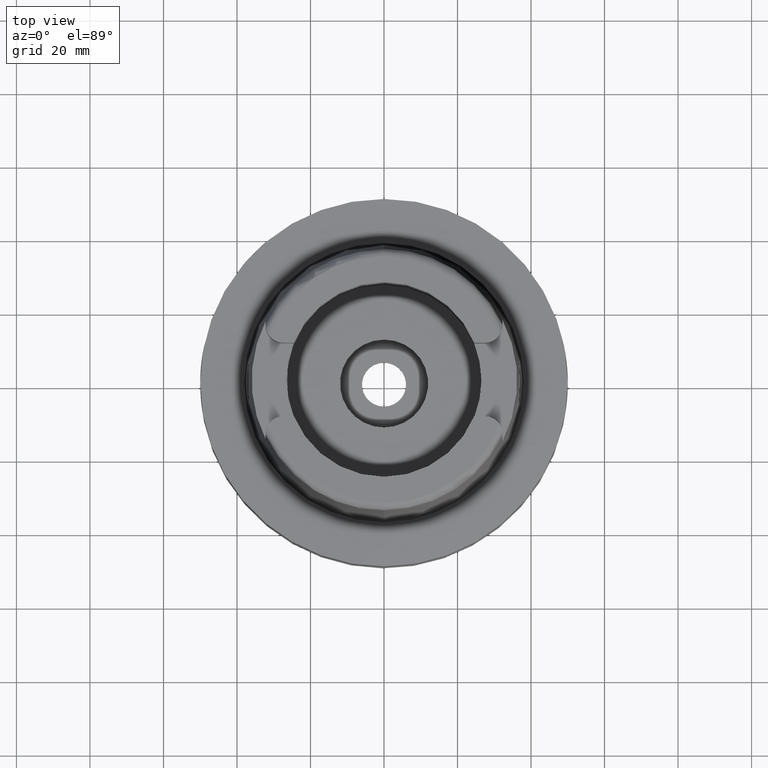
[diagram: clean part render]
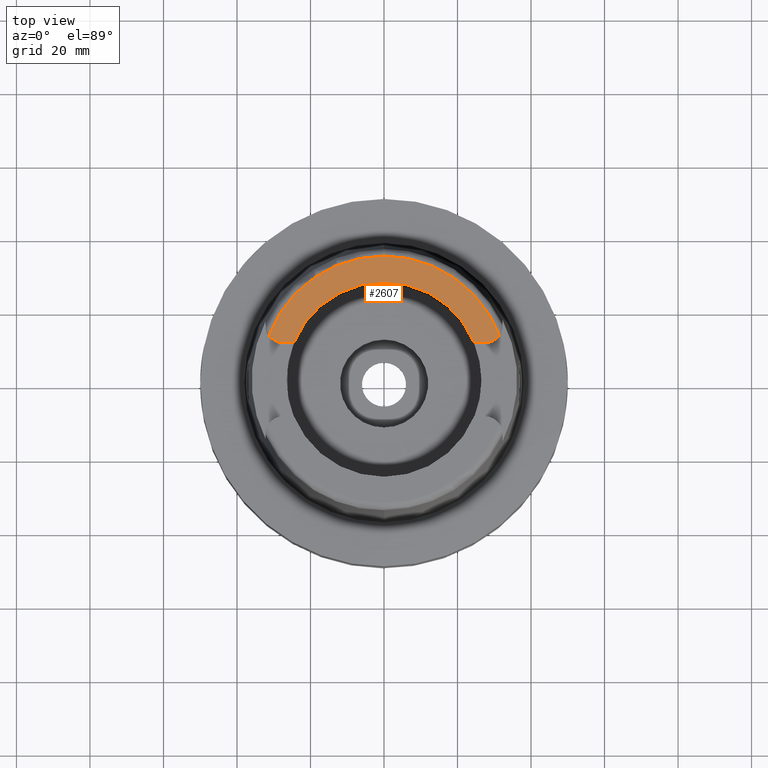
[diagram: same view with one face highlighted and labeled with its STEP entity id]
A machine part, top view. The second image highlights one B-rep face of the part: STEP entity #2607.
In plain terms, the highlighted planar face has unit normal (0, 0, 1).
Its self-contained STEP definition (entity closure, byte-faithful):
#67 = FACE_OUTER_BOUND ( 'NONE', #4499, .T. ) ;
#395 = VERTEX_POINT ( 'NONE', #3843 ) ;
#671 = DIRECTION ( 'NONE',  ( 0.0000000000000000000, -1.000000000000000000, 0.0000000000000000000 ) ) ;
#695 = CARTESIAN_POINT ( 'NONE',  ( 27.36999999999999744, 10.00999999999999979, 50.00000000000000000 ) ) ;
#720 = AXIS2_PLACEMENT_3D ( 'NONE', #2343, #2863, #2935 ) ;
#938 = DIRECTION ( 'NONE',  ( 1.000000000000000000, -1.423194637337000101E-13, 0.0000000000000000000 ) ) ;
#1067 = CARTESIAN_POINT ( 'NONE',  ( 0.0000000000000000000, 0.0000000000000000000, 50.00000000000000000 ) ) ;
#1154 = DIRECTION ( 'NONE',  ( 0.0000000000000000000, 1.000000000000000000, 0.0000000000000000000 ) ) ;
#1200 = CIRCLE ( 'NONE', #4673, 4.879999999999999005 ) ;
#1302 = CARTESIAN_POINT ( 'NONE',  ( 27.36999999999999744, 14.89000000000000057, 50.00000000000000000 ) ) ;
#1338 = CIRCLE ( 'NONE', #2332, 4.880000000000001670 ) ;
#1373 = LINE ( 'NONE', #3265, #2190 ) ;
#1421 = CARTESIAN_POINT ( 'NONE',  ( 31.35385269249000473, 12.07161079256999869, 50.00000000000000000 ) ) ;
#1606 = LINE ( 'NONE', #3497, #1702 ) ;
#1678 = VERTEX_POINT ( 'NONE', #2262 ) ;
#1702 = VECTOR ( 'NONE', #2137, 1000.000000000000000 ) ;
#1727 = CARTESIAN_POINT ( 'NONE',  ( -27.36999999999999744, 14.89000000000000057, 50.00000000000000000 ) ) ;
#1960 = DIRECTION ( 'NONE',  ( 0.0000000000000000000, 0.0000000000000000000, 1.000000000000000000 ) ) ;
#2137 = DIRECTION ( 'NONE',  ( 1.000000000000000000, 1.429464217237000036E-13, 0.0000000000000000000 ) ) ;
#2169 = ORIENTED_EDGE ( 'NONE', *, *, #5529, .F. ) ;
#2184 = AXIS2_PLACEMENT_3D ( 'NONE', #5342, #3449, #2488 ) ;
#2190 = VECTOR ( 'NONE', #938, 1000.000000000000000 ) ;
#2262 = CARTESIAN_POINT ( 'NONE',  ( 24.53670515777999839, 10.00999999999999979, 50.00000000000000000 ) ) ;
#2332 = AXIS2_PLACEMENT_3D ( 'NONE', #1302, #4123, #2698 ) ;
#2343 = CARTESIAN_POINT ( 'NONE',  ( 0.0000000000000000000, 0.0000000000000000000, 50.00000000000000000 ) ) ;
#2488 = DIRECTION ( 'NONE',  ( 0.9259134021805098813, 0.3777358490566039562, 0.0000000000000000000 ) ) ;
#2607 = ADVANCED_FACE ( 'NONE', ( #67 ), #4344, .T. ) ;
#2608 = CARTESIAN_POINT ( 'NONE',  ( 0.0000000000000000000, 0.0000000000000000000, 50.00000000000000000 ) ) ;
#2675 = EDGE_CURVE ( 'NONE', #1678, #395, #5056, .T. ) ;
#2698 = DIRECTION ( 'NONE',  ( 0.8163632566568778115, -0.5775387720149849358, 0.0000000000000000000 ) ) ;
#2863 = DIRECTION ( 'NONE',  ( 0.0000000000000000000, 0.0000000000000000000, -1.000000000000000000 ) ) ;
#2897 = CARTESIAN_POINT ( 'NONE',  ( -27.36999999999999744, 10.00999999999999979, 50.00000000000000000 ) ) ;
#2935 = DIRECTION ( 'NONE',  ( -0.9332215253017949186, 0.3593015233941980191, 0.0000000000000000000 ) ) ;
#3005 = VERTEX_POINT ( 'NONE', #1421 ) ;
#3090 = CIRCLE ( 'NONE', #4974, 26.50000000000000000 ) ;
#3187 = CARTESIAN_POINT ( 'NONE',  ( -31.35385269249000473, 12.07161079256999869, 50.00000000000000000 ) ) ;
#3265 = CARTESIAN_POINT ( 'NONE',  ( 24.53670515777999839, 10.00999999999999979, 50.00000000000000000 ) ) ;
#3283 = ORIENTED_EDGE ( 'NONE', *, *, #4233, .F. ) ;
#3449 = DIRECTION ( 'NONE',  ( 0.0000000000000000000, 0.0000000000000000000, 1.000000000000000000 ) ) ;
#3497 = CARTESIAN_POINT ( 'NONE',  ( -27.36999999999999744, 10.00999999999999979, 50.00000000000000000 ) ) ;
#3509 = DIRECTION ( 'NONE',  ( 0.0000000000000000000, 0.0000000000000000000, 1.000000000000000000 ) ) ;
#3512 = EDGE_CURVE ( 'NONE', #1678, #5752, #1373, .T. ) ;
#3843 = CARTESIAN_POINT ( 'NONE',  ( 0.0000000000000000000, 26.50000000000000000, 50.00000000000000000 ) ) ;
#3954 = AXIS2_PLACEMENT_3D ( 'NONE', #1067, #1960, #4848 ) ;
#4008 = EDGE_CURVE ( 'NONE', #5550, #4447, #1606, .T. ) ;
#4044 = ORIENTED_EDGE ( 'NONE', *, *, #4008, .T. ) ;
#4123 = DIRECTION ( 'NONE',  ( 0.0000000000000000000, 0.0000000000000000000, -1.000000000000000000 ) ) ;
#4233 = EDGE_CURVE ( 'NONE', #5550, #4931, #1200, .T. ) ;
#4344 = PLANE ( 'NONE',  #3954 ) ;
#4414 = CARTESIAN_POINT ( 'NONE',  ( -24.53670515777999839, 10.00999999999999979, 50.00000000000000000 ) ) ;
#4445 = DIRECTION ( 'NONE',  ( 0.0000000000000000000, 0.0000000000000000000, -1.000000000000000000 ) ) ;
#4447 = VERTEX_POINT ( 'NONE', #4414 ) ;
#4480 = ORIENTED_EDGE ( 'NONE', *, *, #2675, .F. ) ;
#4499 = EDGE_LOOP ( 'NONE', ( #4044, #5091, #4480, #4652, #5264, #2169, #3283 ) ) ;
#4626 = EDGE_CURVE ( 'NONE', #395, #4447, #3090, .T. ) ;
#4652 = ORIENTED_EDGE ( 'NONE', *, *, #3512, .T. ) ;
#4673 = AXIS2_PLACEMENT_3D ( 'NONE', #1727, #4445, #671 ) ;
#4848 = DIRECTION ( 'NONE',  ( 1.000000000000000000, 0.0000000000000000000, 0.0000000000000000000 ) ) ;
#4931 = VERTEX_POINT ( 'NONE', #3187 ) ;
#4974 = AXIS2_PLACEMENT_3D ( 'NONE', #2608, #3509, #1154 ) ;
#5056 = CIRCLE ( 'NONE', #2184, 26.50000000000000711 ) ;
#5091 = ORIENTED_EDGE ( 'NONE', *, *, #4626, .F. ) ;
#5264 = ORIENTED_EDGE ( 'NONE', *, *, #6123, .F. ) ;
#5342 = CARTESIAN_POINT ( 'NONE',  ( 0.0000000000000000000, 0.0000000000000000000, 50.00000000000000000 ) ) ;
#5529 = EDGE_CURVE ( 'NONE', #4931, #3005, #6082, .T. ) ;
#5550 = VERTEX_POINT ( 'NONE', #2897 ) ;
#5752 = VERTEX_POINT ( 'NONE', #695 ) ;
#6082 = CIRCLE ( 'NONE', #720, 33.59743838135999994 ) ;
#6123 = EDGE_CURVE ( 'NONE', #3005, #5752, #1338, .T. ) ;